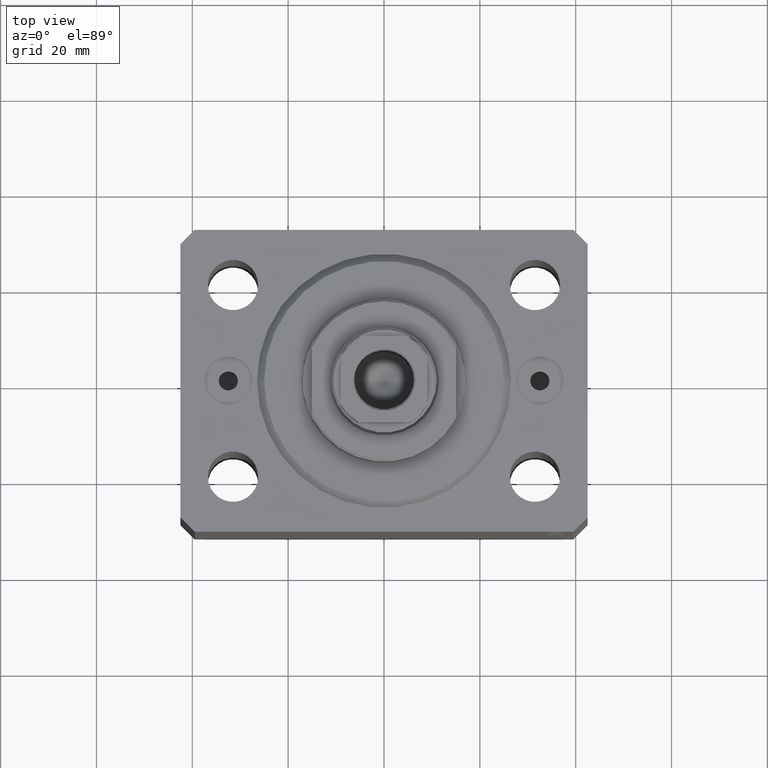
[diagram: clean part render]
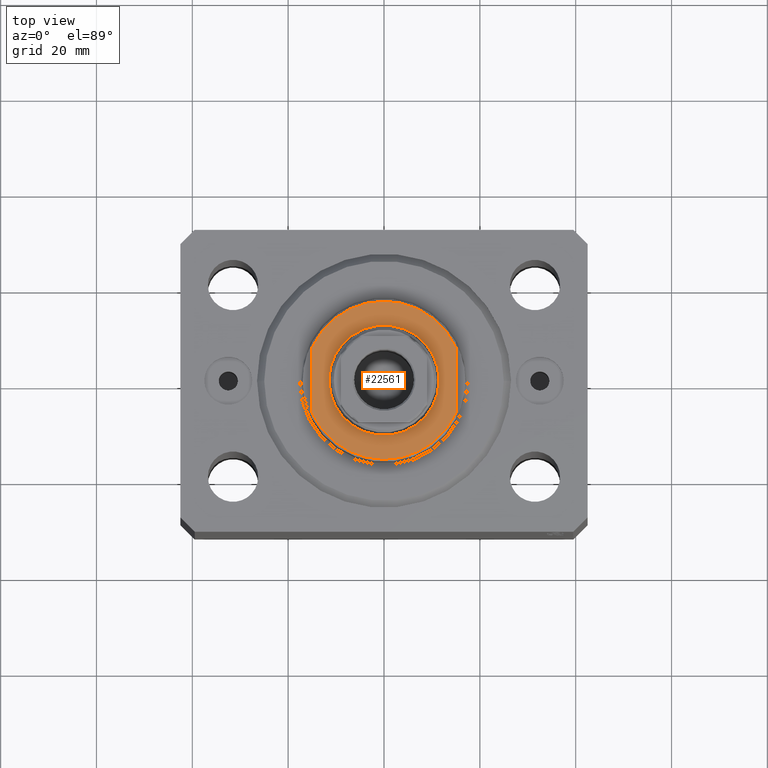
[diagram: same view with one face highlighted and labeled with its STEP entity id]
A machine part, top view. The second image highlights one B-rep face of the part: STEP entity #22561.
In plain terms, the highlighted planar face has unit normal (0, 0, 1).
Its self-contained STEP definition (entity closure, byte-faithful):
#280 = DIRECTION ( 'NONE',  ( -1.000000000000000000, 0.000000000000000000, 0.000000000000000000 ) ) ;
#337 = VECTOR ( 'NONE', #22060, 1000.000000000000000 ) ;
#1464 = VECTOR ( 'NONE', #11404, 1000.000000000000000 ) ;
#2756 = EDGE_CURVE ( 'NONE', #36889, #3422, #9762, .T. ) ;
#3422 = VERTEX_POINT ( 'NONE', #9967 ) ;
#6908 = AXIS2_PLACEMENT_3D ( 'NONE', #16966, #44392, #37426 ) ;
#7098 = FACE_OUTER_BOUND ( 'NONE', #19784, .T. ) ;
#8632 = VERTEX_POINT ( 'NONE', #20935 ) ;
#9196 = CARTESIAN_POINT ( 'NONE',  ( 0.000000000000000000, 0.000000000000000000, -7.000000000000000000 ) ) ;
#9762 = CIRCLE ( 'NONE', #6908, 16.50000000000002132 ) ;
#9967 = CARTESIAN_POINT ( 'NONE',  ( -14.99999999999999645, -6.873863542433817031, -7.000000000000000000 ) ) ;
#10119 = CARTESIAN_POINT ( 'NONE',  ( 14.99999999999999645, -6.873863542433817031, -7.000000000000000000 ) ) ;
#10460 = CARTESIAN_POINT ( 'NONE',  ( 0.000000000000000000, 0.000000000000000000, -7.000000000000000000 ) ) ;
#10808 = ORIENTED_EDGE ( 'NONE', *, *, #2756, .T. ) ;
#11404 = DIRECTION ( 'NONE',  ( 0.000000000000000000, -1.000000000000000000, -0.000000000000000000 ) ) ;
#11707 = CARTESIAN_POINT ( 'NONE',  ( -15.00000000000000000, -42.42640687119285303, -7.000000000000000000 ) ) ;
#11971 = EDGE_CURVE ( 'NONE', #8632, #27190, #44452, .T. ) ;
#12544 = ORIENTED_EDGE ( 'NONE', *, *, #32197, .T. ) ;
#14306 = DIRECTION ( 'NONE',  ( -1.000000000000000000, 0.000000000000000000, -0.000000000000000000 ) ) ;
#15967 = DIRECTION ( 'NONE',  ( -0.000000000000000000, -0.000000000000000000, 1.000000000000000000 ) ) ;
#16966 = CARTESIAN_POINT ( 'NONE',  ( 0.000000000000000000, 0.000000000000000000, -7.000000000000000000 ) ) ;
#17657 = DIRECTION ( 'NONE',  ( 0.000000000000000000, 0.000000000000000000, -1.000000000000000000 ) ) ;
#17804 = DIRECTION ( 'NONE',  ( 0.000000000000000000, 0.000000000000000000, -1.000000000000000000 ) ) ;
#19288 = ORIENTED_EDGE ( 'NONE', *, *, #26969, .F. ) ;
#19784 = EDGE_LOOP ( 'NONE', ( #36224, #31532, #10808, #19288 ) ) ;
#20935 = CARTESIAN_POINT ( 'NONE',  ( -11.50000000000001776, 0.000000000000000000, -7.000000000000000000 ) ) ;
#21199 = AXIS2_PLACEMENT_3D ( 'NONE', #44353, #17804, #280 ) ;
#21560 = CARTESIAN_POINT ( 'NONE',  ( -14.99999999999999645, 6.873863542433817031, -7.000000000000000000 ) ) ;
#22060 = DIRECTION ( 'NONE',  ( -0.000000000000000000, -1.000000000000000000, -0.000000000000000000 ) ) ;
#22407 = CARTESIAN_POINT ( 'NONE',  ( 11.50000000000001776, 1.408343819019458543E-15, -7.000000000000000000 ) ) ;
#22463 = CARTESIAN_POINT ( 'NONE',  ( 0.000000000000000000, 0.000000000000000000, -7.000000000000000000 ) ) ;
#22561 = ADVANCED_FACE ( 'NONE', ( #23760, #7098 ), #37232, .T. ) ;
#23448 = AXIS2_PLACEMENT_3D ( 'NONE', #9196, #15967, #43374 ) ;
#23450 = CARTESIAN_POINT ( 'NONE',  ( 14.99999999999999645, 6.873863542433817031, -7.000000000000000000 ) ) ;
#23760 = FACE_BOUND ( 'NONE', #24492, .T. ) ;
#24492 = EDGE_LOOP ( 'NONE', ( #40877, #12544 ) ) ;
#26942 = CIRCLE ( 'NONE', #21199, 16.50000000000002132 ) ;
#26969 = EDGE_CURVE ( 'NONE', #36958, #3422, #35987, .T. ) ;
#27190 = VERTEX_POINT ( 'NONE', #22407 ) ;
#27520 = VERTEX_POINT ( 'NONE', #23450 ) ;
#28424 = EDGE_CURVE ( 'NONE', #36958, #27520, #26942, .T. ) ;
#31532 = ORIENTED_EDGE ( 'NONE', *, *, #44463, .T. ) ;
#32197 = EDGE_CURVE ( 'NONE', #27190, #8632, #43564, .T. ) ;
#34580 = LINE ( 'NONE', #41972, #1464 ) ;
#35987 = LINE ( 'NONE', #11707, #337 ) ;
#36224 = ORIENTED_EDGE ( 'NONE', *, *, #28424, .T. ) ;
#36889 = VERTEX_POINT ( 'NONE', #10119 ) ;
#36958 = VERTEX_POINT ( 'NONE', #21560 ) ;
#37232 = PLANE ( 'NONE',  #38257 ) ;
#37297 = AXIS2_PLACEMENT_3D ( 'NONE', #22463, #43788, #40196 ) ;
#37426 = DIRECTION ( 'NONE',  ( -1.000000000000000000, 0.000000000000000000, 0.000000000000000000 ) ) ;
#38257 = AXIS2_PLACEMENT_3D ( 'NONE', #10460, #17657, #14306 ) ;
#40196 = DIRECTION ( 'NONE',  ( -1.000000000000000000, 0.000000000000000000, 0.000000000000000000 ) ) ;
#40877 = ORIENTED_EDGE ( 'NONE', *, *, #11971, .T. ) ;
#41972 = CARTESIAN_POINT ( 'NONE',  ( 15.00000000000000000, -42.42640687119285303, -7.000000000000000000 ) ) ;
#43374 = DIRECTION ( 'NONE',  ( -1.000000000000000000, 0.000000000000000000, 0.000000000000000000 ) ) ;
#43564 = CIRCLE ( 'NONE', #23448, 11.50000000000001776 ) ;
#43788 = DIRECTION ( 'NONE',  ( -0.000000000000000000, -0.000000000000000000, 1.000000000000000000 ) ) ;
#44353 = CARTESIAN_POINT ( 'NONE',  ( 0.000000000000000000, 0.000000000000000000, -7.000000000000000000 ) ) ;
#44392 = DIRECTION ( 'NONE',  ( 0.000000000000000000, 0.000000000000000000, -1.000000000000000000 ) ) ;
#44452 = CIRCLE ( 'NONE', #37297, 11.50000000000001776 ) ;
#44463 = EDGE_CURVE ( 'NONE', #27520, #36889, #34580, .T. ) ;